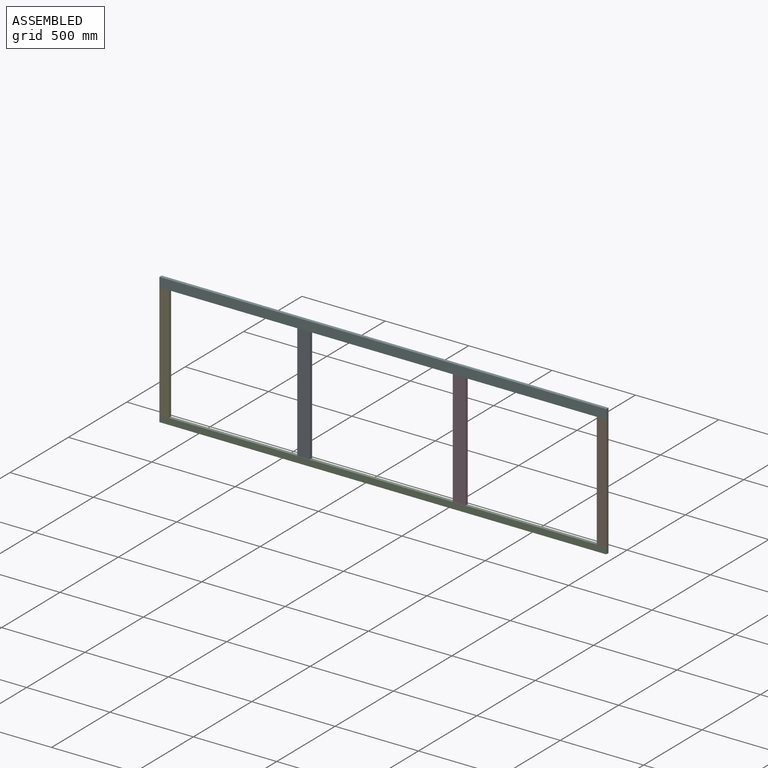
[diagram: assembled view]
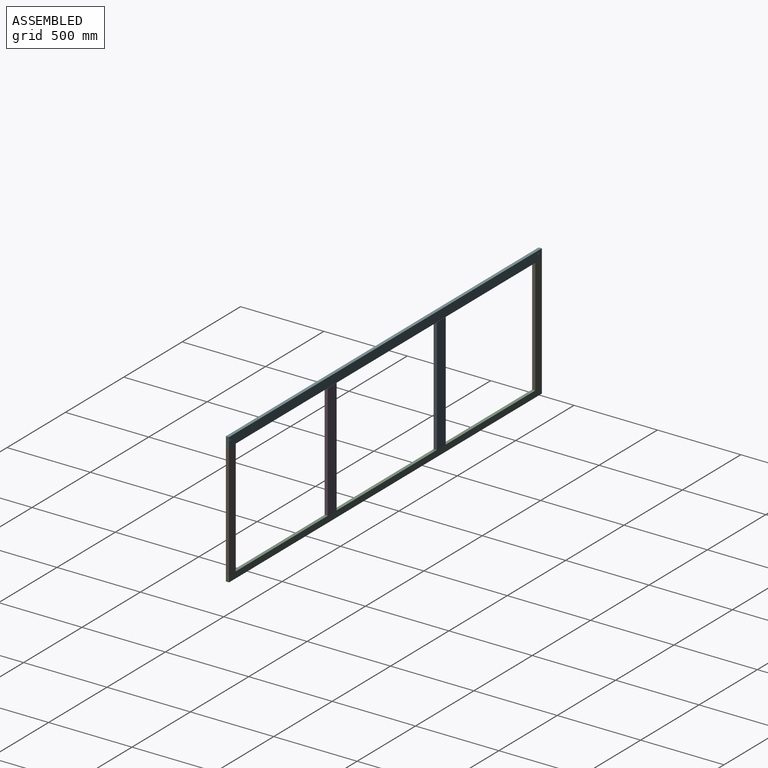
[diagram: assembled view, second angle]
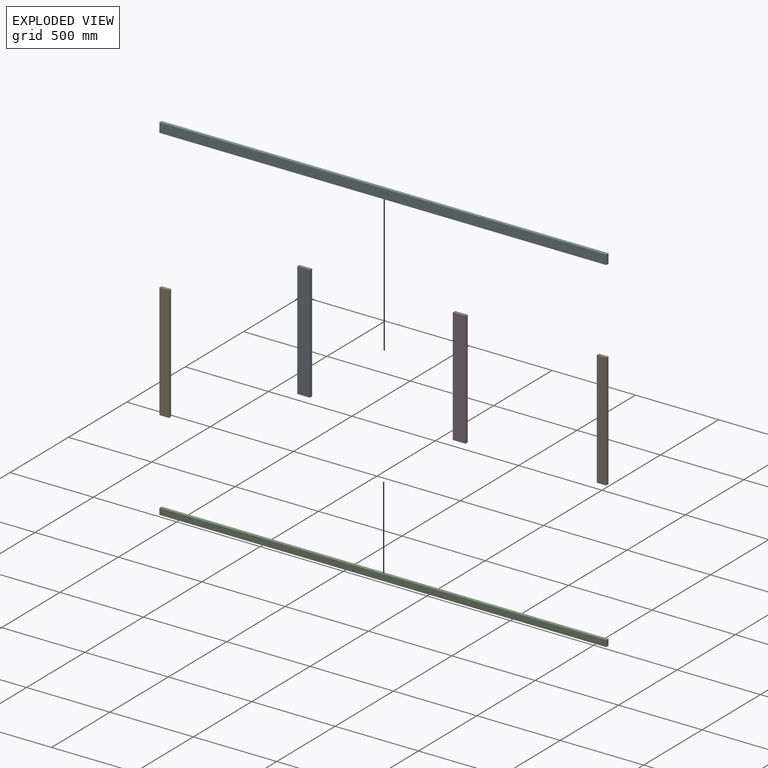
[diagram: exploded view]
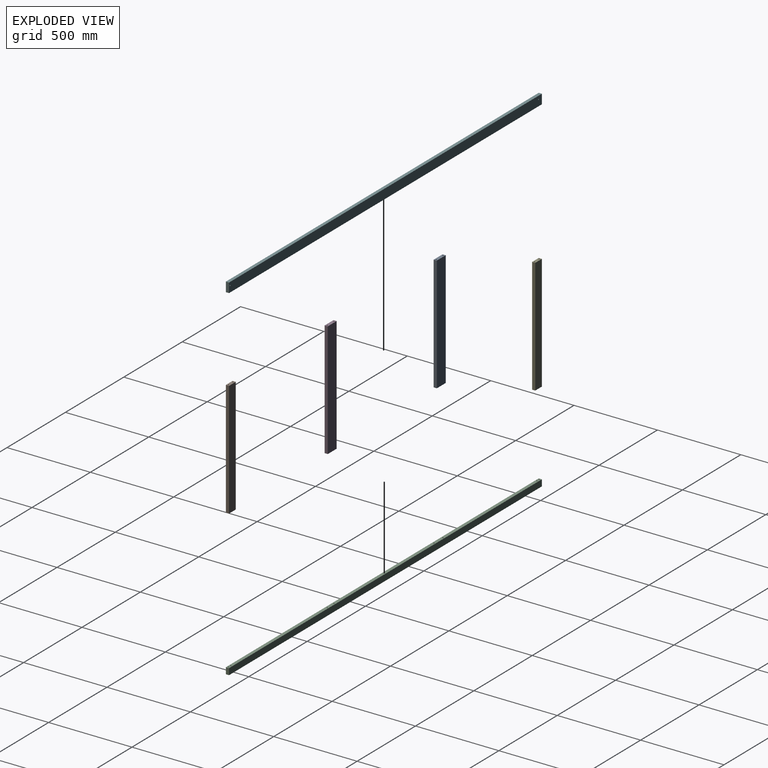
[diagram: exploded view, second angle]
ASSEMBLY  parts=6 mates=5
PART A: 14 faces, bbox 76.2x19.1x692.2 mm
  f0: plane 76.2x19.05mm, normal (0,0,-1), area 1388.3mm2, adj f1,f3,f4,f5,f11,f13
  f1: plane 692.15x19.05mm, normal (1,0,0), area 13185.5mm2, adj f0,f2,f4,f5
  f2: plane 76.2x19.05mm, normal (0,0,1), area 1388.3mm2, adj f1,f3,f4,f5,f7,f9
  f3: plane 692.15x19.05mm, normal (-1,0,0), area 13185.5mm2, adj f0,f2,f4,f5
  f4: plane 692.15x76.2mm, normal (0,-1,0), area 52741.8mm2, adj f0,f1,f2,f3
  f5: plane 692.15x76.2mm, normal (0,1,0), area 52741.8mm2, adj f0,f1,f2,f3
  f6: cone r=0mm half-angle=59deg, axis (0,0,1), area 36.9mm2, adj f7
  f7: cylinder r=3.17mm len=12.7mm, axis (0,0,1), area 253.4mm2, adj f2,f6
  f8: cone r=0mm half-angle=59deg, axis (0,0,1), area 36.9mm2, adj f9
  f9: cylinder r=3.17mm len=12.7mm, axis (0,0,1), area 253.4mm2, adj f2,f8
  f10: cone r=0mm half-angle=59deg, axis (0,0,-1), area 36.9mm2, adj f11
  f11: cylinder r=3.17mm len=12.7mm, axis (0,0,-1), area 253.4mm2, adj f0,f10
  f12: cone r=0mm half-angle=59deg, axis (0,0,-1), area 36.9mm2, adj f13
  f13: cylinder r=3.17mm len=12.7mm, axis (0,0,-1), area 253.4mm2, adj f0,f12
PART B: 14 faces, bbox 57.2x19.1x692.2 mm
  f0: plane 57.15x19.05mm, normal (0,0,-1), area 1025.4mm2, adj f1,f3,f4,f5,f11,f13
  f1: plane 692.15x19.05mm, normal (1,0,0), area 13185.5mm2, adj f0,f2,f4,f5
  f2: plane 57.15x19.05mm, normal (0,0,1), area 1025.4mm2, adj f1,f3,f4,f5,f7,f9
  f3: plane 692.15x19.05mm, normal (-1,0,0), area 13185.5mm2, adj f0,f2,f4,f5
  f4: plane 692.15x57.15mm, normal (0,-1,0), area 39556.4mm2, adj f0,f1,f2,f3
  f5: plane 692.15x57.15mm, normal (0,1,0), area 39556.4mm2, adj f0,f1,f2,f3
  f6: cone r=0mm half-angle=59deg, axis (0,0,1), area 36.9mm2, adj f7
  f7: cylinder r=3.17mm len=12.7mm, axis (0,0,1), area 253.4mm2, adj f2,f6
  f8: cone r=0mm half-angle=59deg, axis (0,0,1), area 36.9mm2, adj f9
  f9: cylinder r=3.17mm len=12.7mm, axis (0,0,1), area 253.4mm2, adj f2,f8
  f10: cone r=0mm half-angle=59deg, axis (0,0,-1), area 36.9mm2, adj f11
  f11: cylinder r=3.17mm len=12.7mm, axis (0,0,-1), area 253.4mm2, adj f0,f10
  f12: cone r=0mm half-angle=59deg, axis (0,0,-1), area 36.9mm2, adj f13
  f13: cylinder r=3.17mm len=12.7mm, axis (0,0,-1), area 253.4mm2, adj f0,f12
PART C: 22 faces, bbox 2679.7x19.1x38.1 mm
  f0: plane 38.1x19.05mm, normal (-1,0,0), area 725.8mm2, adj f1,f3,f4,f5
  f1: plane 2679.7x19.05mm, normal (0,0,-1), area 51048.3mm2, adj f0,f2,f4,f5
  f2: plane 38.1x19.05mm, normal (1,0,0), area 725.8mm2, adj f1,f3,f4,f5
  f3: plane 2679.7x19.05mm, normal (0,0,1), area 50794.9mm2, adj f0,f2,f4,f5,f7,f9,f11,f13
  f4: plane 2679.7x38.1mm, normal (0,-1,0), area 102096.6mm2, adj f0,f1,f2,f3
  f5: plane 2679.7x38.1mm, normal (0,1,0), area 102096.6mm2, adj f0,f1,f2,f3
  f6: cone r=0mm half-angle=59deg, axis (0,0,1), area 36.9mm2, adj f7
  f7: cylinder r=3.17mm len=12.7mm, axis (0,0,1), area 253.4mm2, adj f3,f6
  f8: cone r=0mm half-angle=59deg, axis (0,0,1), area 36.9mm2, adj f9
  f9: cylinder r=3.17mm len=12.7mm, axis (0,0,1), area 253.4mm2, adj f3,f8
  f10: cone r=0mm half-angle=59deg, axis (0,0,1), area 36.9mm2, adj f11
  f11: cylinder r=3.17mm len=12.7mm, axis (0,0,1), area 253.4mm2, adj f3,f10
  f12: cone r=0mm half-angle=59deg, axis (0,0,1), area 36.9mm2, adj f13
  f13: cylinder r=3.17mm len=12.7mm, axis (0,0,1), area 253.4mm2, adj f3,f12
  f14: cone r=0mm half-angle=59deg, axis (0,0,1), area 36.9mm2, adj f15
  f15: cylinder r=3.17mm len=12.7mm, axis (0,0,1), area 253.4mm2, adj f3,f14
  f16: cone r=0mm half-angle=59deg, axis (0,0,1), area 36.9mm2, adj f17
  f17: cylinder r=3.17mm len=12.7mm, axis (0,0,1), area 253.4mm2, adj f3,f16
  f18: cone r=0mm half-angle=59deg, axis (0,0,1), area 36.9mm2, adj f19
  f19: cylinder r=3.17mm len=12.7mm, axis (0,0,1), area 253.4mm2, adj f3,f18
  f20: cone r=0mm half-angle=59deg, axis (0,0,1), area 36.9mm2, adj f21
  f21: cylinder r=3.17mm len=12.7mm, axis (0,0,1), area 253.4mm2, adj f3,f20
PART D: same geometry as A
PART E: same geometry as B
PART F: 26 faces, bbox 2679.7x19.1x57.2 mm
  f0: plane 57.15x19.05mm, normal (-1,0,0), area 1088.7mm2, adj f1,f3,f4,f5
  f1: plane 2679.7x19.05mm, normal (0,0,-1), area 51048.3mm2, adj f0,f2,f4,f5
  f2: plane 57.15x19.05mm, normal (1,0,0), area 1088.7mm2, adj f1,f3,f4,f5
  f3: plane 2679.7x19.05mm, normal (0,0,1), area 50794.9mm2, adj f0,f2,f4,f5,f7,f9,f11,f13
  f4: plane 2679.7x57.15mm, normal (0,-1,0), area 153081.5mm2, adj f0,f1,f2,f3,f23,f25
  f5: plane 2679.7x57.15mm, normal (0,1,0), area 153144.9mm2, adj f0,f1,f2,f3
  f6: cone r=0mm half-angle=59deg, axis (0,0,1), area 36.9mm2, adj f7
  f7: cylinder r=3.17mm len=12.7mm, axis (0,0,1), area 253.4mm2, adj f3,f6
  f8: cone r=0mm half-angle=59deg, axis (0,0,1), area 36.9mm2, adj f9
  f9: cylinder r=3.17mm len=12.7mm, axis (0,0,1), area 253.4mm2, adj f3,f8
  f10: cone r=0mm half-angle=59deg, axis (0,0,1), area 36.9mm2, adj f11
  f11: cylinder r=3.17mm len=12.7mm, axis (0,0,1), area 253.4mm2, adj f3,f10
  f12: cone r=0mm half-angle=59deg, axis (0,0,1), area 36.9mm2, adj f13
  f13: cylinder r=3.17mm len=12.7mm, axis (0,0,1), area 253.4mm2, adj f3,f12
  f14: cone r=0mm half-angle=59deg, axis (0,0,1), area 36.9mm2, adj f15
  f15: cylinder r=3.17mm len=12.7mm, axis (0,0,1), area 253.4mm2, adj f3,f14
  f16: cone r=0mm half-angle=59deg, axis (0,0,1), area 36.9mm2, adj f17
  f17: cylinder r=3.17mm len=12.7mm, axis (0,0,1), area 253.4mm2, adj f3,f16
  f18: cone r=0mm half-angle=59deg, axis (0,0,1), area 36.9mm2, adj f19
  f19: cylinder r=3.17mm len=12.7mm, axis (0,0,1), area 253.4mm2, adj f3,f18
  f20: cone r=0mm half-angle=59deg, axis (0,0,1), area 36.9mm2, adj f21
  f21: cylinder r=3.17mm len=12.7mm, axis (0,0,1), area 253.4mm2, adj f3,f20
  f22: cone r=0mm half-angle=59deg, axis (0,-1,0), area 36.9mm2, adj f23
  f23: cylinder r=3.17mm len=12.7mm, axis (0,-1,0), area 253.4mm2, adj f4,f22
  f24: cone r=0mm half-angle=59deg, axis (0,-1,0), area 36.9mm2, adj f25
  f25: cylinder r=3.17mm len=12.7mm, axis (0,-1,0), area 253.4mm2, adj f4,f24
PLACE A t=(261,464,-715.93)mm
PLACE B t=(2058.05,462.86,-715.93)mm
PLACE C rot(axis=(1,0,0),0deg) t=(-564.5,462.75,-754.03)mm
PLACE D rot(axis=(1,0,0),0deg) t=(1194.45,463.57,-715.93)mm
PLACE E rot(axis=(1,0,0),0deg) t=(-564.5,462.75,-715.93)mm
PLACE F rot(axis=(-1,0,0),180deg) t=(-564.5,443.7,33.37)mm
MATE fastened C.f10 <-> E.f8  axis (0,0,1) through (-554.97,453.22,-715.93)mm
MATE fastened C.f14 <-> A.f8  axis (0,0,1) through (270.53,454.48,-715.93)mm
MATE fastened B.f6 <-> C.f20  axis (0,0,-1) through (2105.68,453.34,-715.93)mm
MATE fastened E.f8 <-> F.f10  axis (0,0,1) through (-554.97,453.22,-23.78)mm
MATE fastened C.f16 <-> D.f6  axis (0,0,1) through (1261.13,454.05,-715.93)mm
